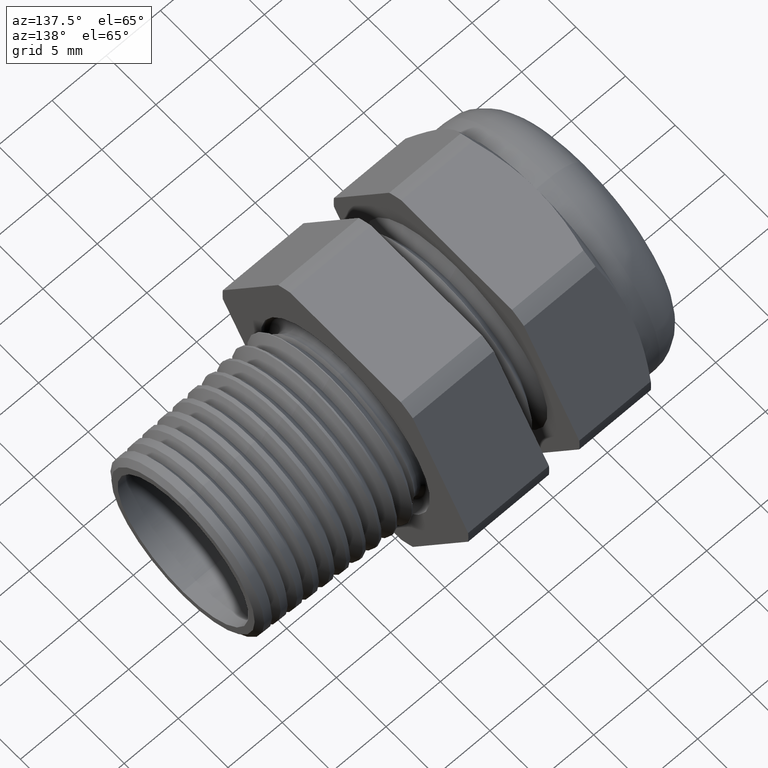
[diagram: clean part render]
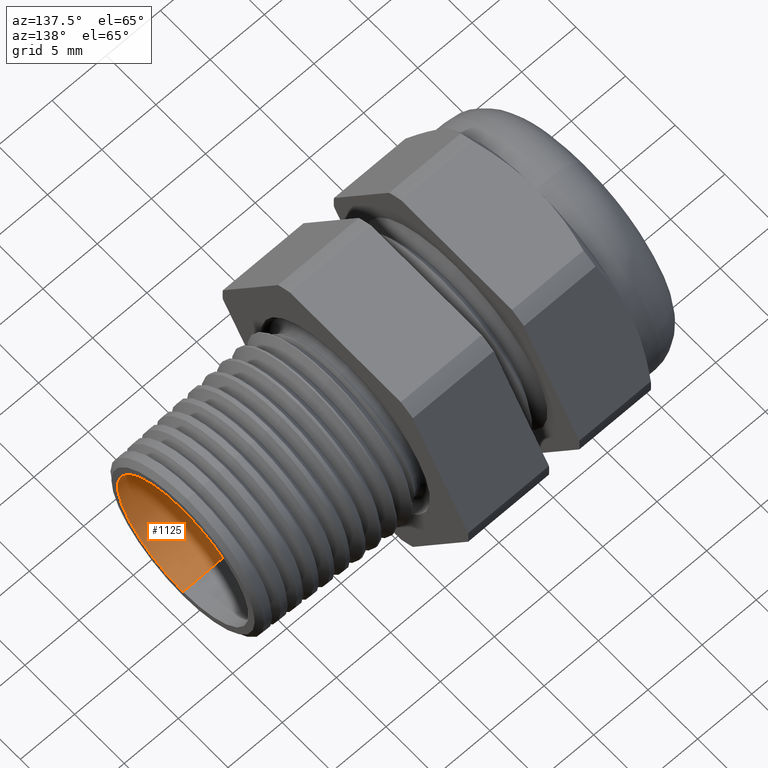
[diagram: same view with one face highlighted and labeled with its STEP entity id]
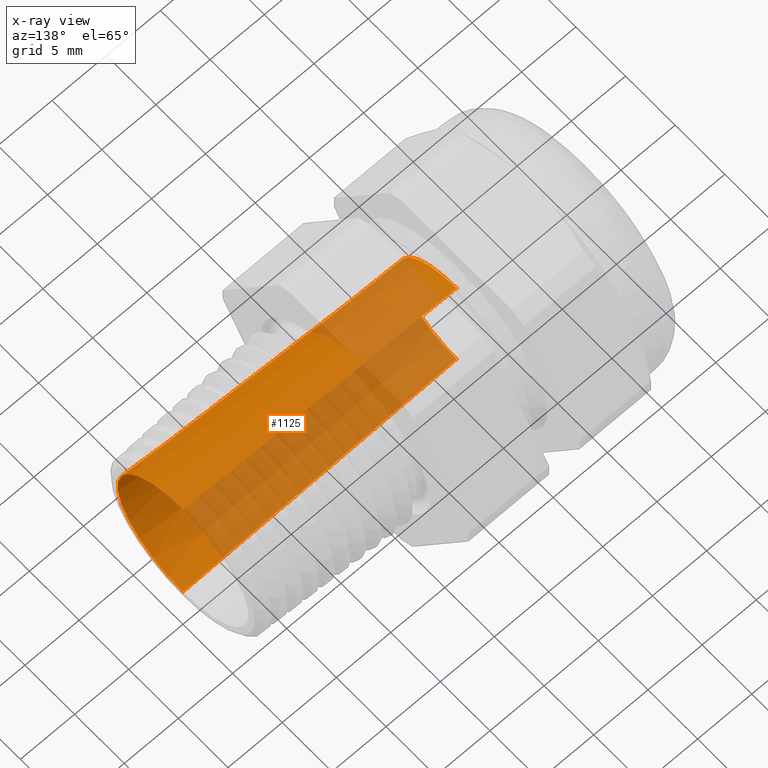
[diagram: x-ray of the same camera — body ghosted, the highlighted face saturated]
A machine part, auxiliary view. The second image highlights one B-rep face of the part: STEP entity #1125.
The next image is the same camera in x-ray: the body ghosted, the highlighted face saturated — about 54% of this face is hidden behind the body in this view.
In plain terms, the highlighted conical surface has half-angle 2 deg.
Its self-contained STEP definition (entity closure, byte-faithful):
#1123 = VERTEX_POINT ( 'NONE', #3185 ) ;
#1125 = ADVANCED_FACE ( 'NONE', ( #3184 ), #3244, .F. ) ;
#1126 = EDGE_LOOP ( 'NONE', ( #1127, #1128, #1191, #1226 ) ) ;
#1127 = ORIENTED_EDGE ( 'NONE', *, *, #1232, .T. ) ;
#1128 = ORIENTED_EDGE ( 'NONE', *, *, #1189, .T. ) ;
#1186 = VERTEX_POINT ( 'NONE', #3325 ) ;
#1189 = EDGE_CURVE ( 'NONE', #1123, #1190, #3318, .T. ) ;
#1190 = VERTEX_POINT ( 'NONE', #3313 ) ;
#1191 = ORIENTED_EDGE ( 'NONE', *, *, #1192, .F. ) ;
#1192 = EDGE_CURVE ( 'NONE', #1193, #1190, #3314, .T. ) ;
#1193 = VERTEX_POINT ( 'NONE', #3370 ) ;
#1226 = ORIENTED_EDGE ( 'NONE', *, *, #1227, .F. ) ;
#1227 = EDGE_CURVE ( 'NONE', #1186, #1193, #3350, .T. ) ;
#1232 = EDGE_CURVE ( 'NONE', #1186, #1123, #3396, .T. ) ;
#3184 = FACE_OUTER_BOUND ( 'NONE', #1126, .T. ) ;
#3185 = CARTESIAN_POINT ( 'NONE',  ( -0.4037499999999999400, 2.967946915722524000E-017, 0.2249999999999999800 ) ) ;
#3241 = DIRECTION ( 'NONE',  ( 0.0000000000000000000, 0.0000000000000000000, -1.000000000000000000 ) ) ;
#3242 = DIRECTION ( 'NONE',  ( 1.000000000000000000, 0.0000000000000000000, 0.0000000000000000000 ) ) ;
#3243 = AXIS2_PLACEMENT_3D ( 'NONE', #3245, #3242, #3241 ) ;
#3244 = CONICAL_SURFACE ( 'NONE', #3243, 0.2249999999999999800, 0.03490658503988732600 ) ;
#3245 = CARTESIAN_POINT ( 'NONE',  ( -0.4037499999999999400, 0.0000000000000000000, 0.0000000000000000000 ) ) ;
#3313 = CARTESIAN_POINT ( 'NONE',  ( 0.5899999999999999700, 3.180438533363503200E-017, 0.2597025146824250600 ) ) ;
#3314 = CIRCLE ( 'NONE', #3374, 0.2597025146824250600 ) ;
#3315 = DIRECTION ( 'NONE',  ( 0.9993908270190957600, 4.273955692857231900E-018, 0.03489949670250170500 ) ) ;
#3316 = VECTOR ( 'NONE', #3315, 39.37007874015748900 ) ;
#3317 = CARTESIAN_POINT ( 'NONE',  ( -0.4037499999999999400, 2.755455298081544500E-017, 0.2249999999999999800 ) ) ;
#3318 = LINE ( 'NONE', #3317, #3316 ) ;
#3325 = CARTESIAN_POINT ( 'NONE',  ( -0.4037499999999999400, 0.0000000000000000000, -0.2249999999999999800 ) ) ;
#3343 = VECTOR ( 'NONE', #3404, 39.37007874015748900 ) ;
#3344 = CARTESIAN_POINT ( 'NONE',  ( -0.4037499999999999400, 0.0000000000000000000, -0.2249999999999999800 ) ) ;
#3350 = LINE ( 'NONE', #3344, #3343 ) ;
#3370 = CARTESIAN_POINT ( 'NONE',  ( 0.5899999999999999700, 0.0000000000000000000, -0.2597025146824250600 ) ) ;
#3371 = DIRECTION ( 'NONE',  ( 0.0000000000000000000, 0.0000000000000000000, 1.000000000000000000 ) ) ;
#3372 = DIRECTION ( 'NONE',  ( -1.000000000000000000, 0.0000000000000000000, 0.0000000000000000000 ) ) ;
#3373 = CARTESIAN_POINT ( 'NONE',  ( 0.5899999999999999700, 0.0000000000000000000, 0.0000000000000000000 ) ) ;
#3374 = AXIS2_PLACEMENT_3D ( 'NONE', #3373, #3372, #3371 ) ;
#3393 = DIRECTION ( 'NONE',  ( 0.0000000000000000000, 0.0000000000000000000, 1.000000000000000000 ) ) ;
#3394 = DIRECTION ( 'NONE',  ( -1.000000000000000000, 0.0000000000000000000, 0.0000000000000000000 ) ) ;
#3395 = AXIS2_PLACEMENT_3D ( 'NONE', #3402, #3394, #3393 ) ;
#3396 = CIRCLE ( 'NONE', #3395, 0.2249999999999999800 ) ;
#3402 = CARTESIAN_POINT ( 'NONE',  ( -0.4037499999999999400, 0.0000000000000000000, 0.0000000000000000000 ) ) ;
#3404 = DIRECTION ( 'NONE',  ( 0.9993908270190957600, 0.0000000000000000000, -0.03489949670250170500 ) ) ;